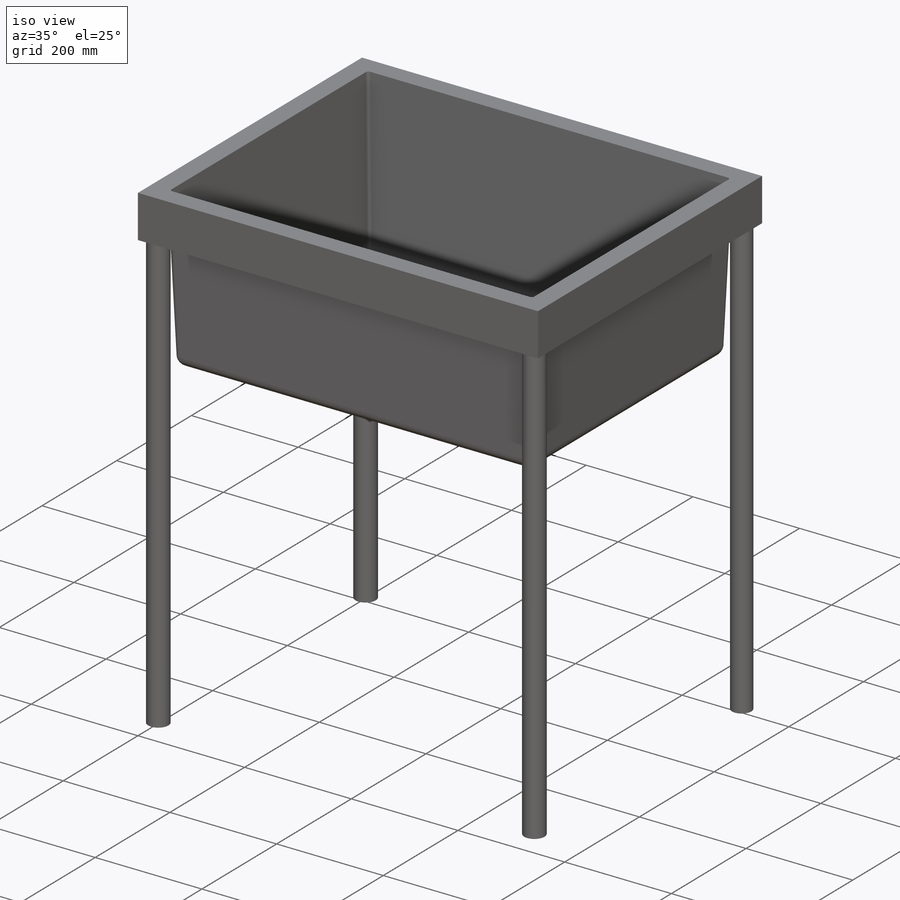
[diagram: iso view]
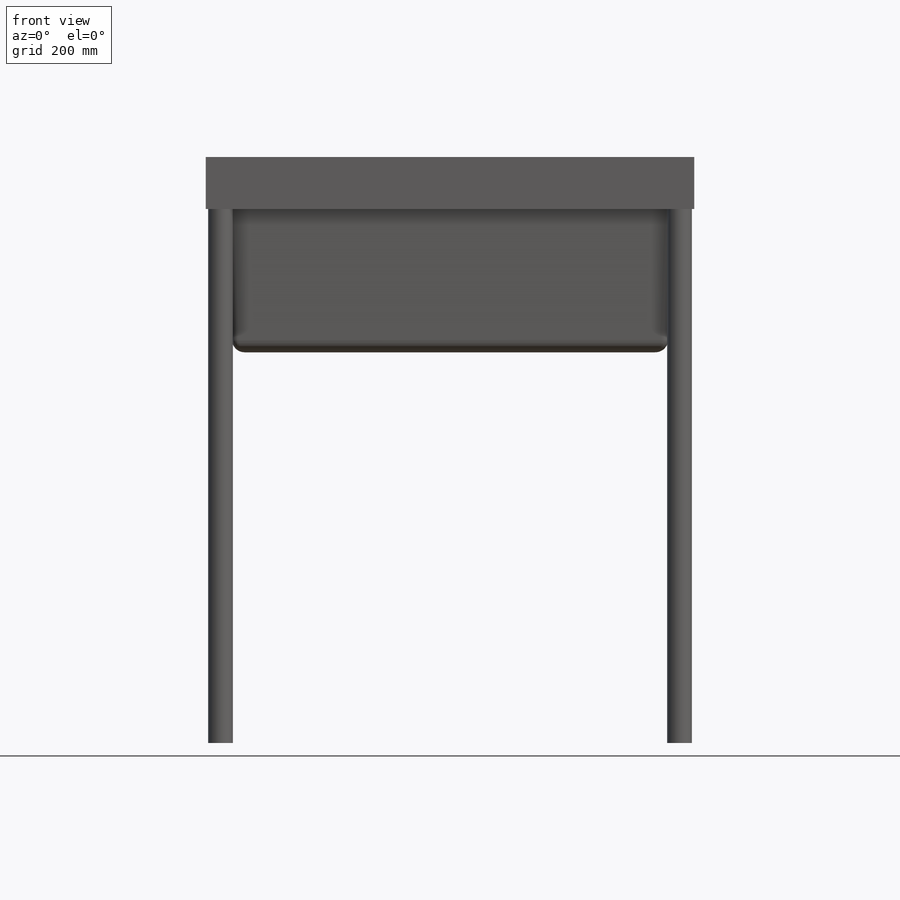
[diagram: front view]
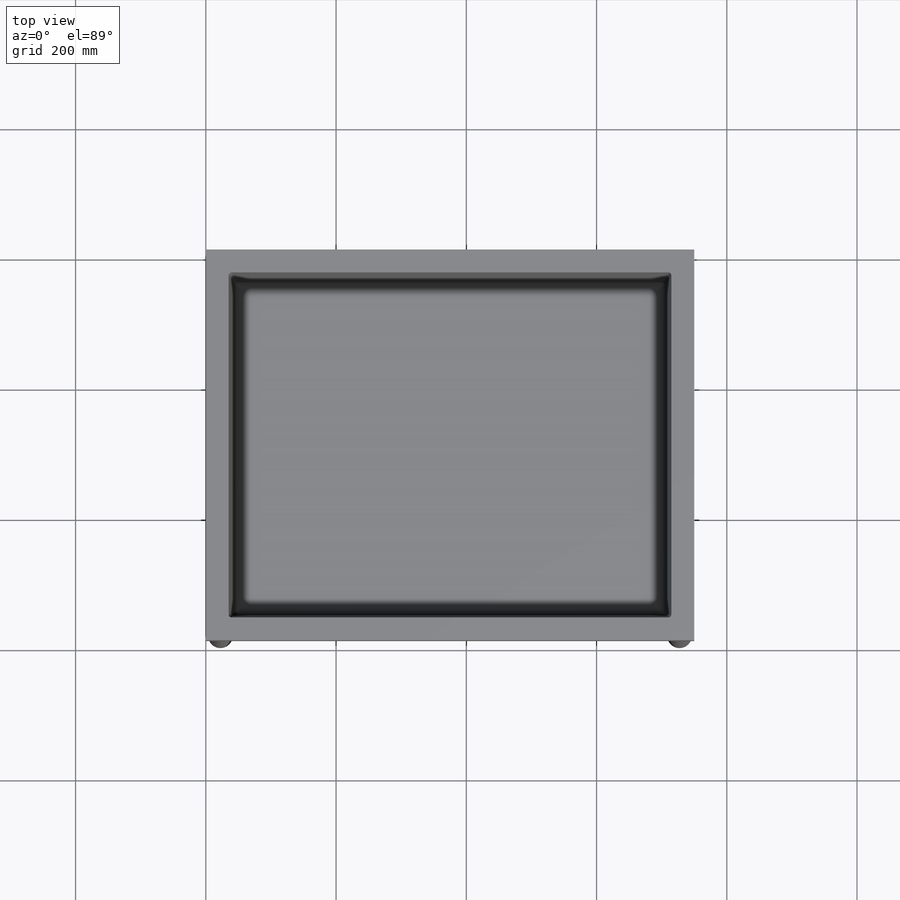
[diagram: top view]
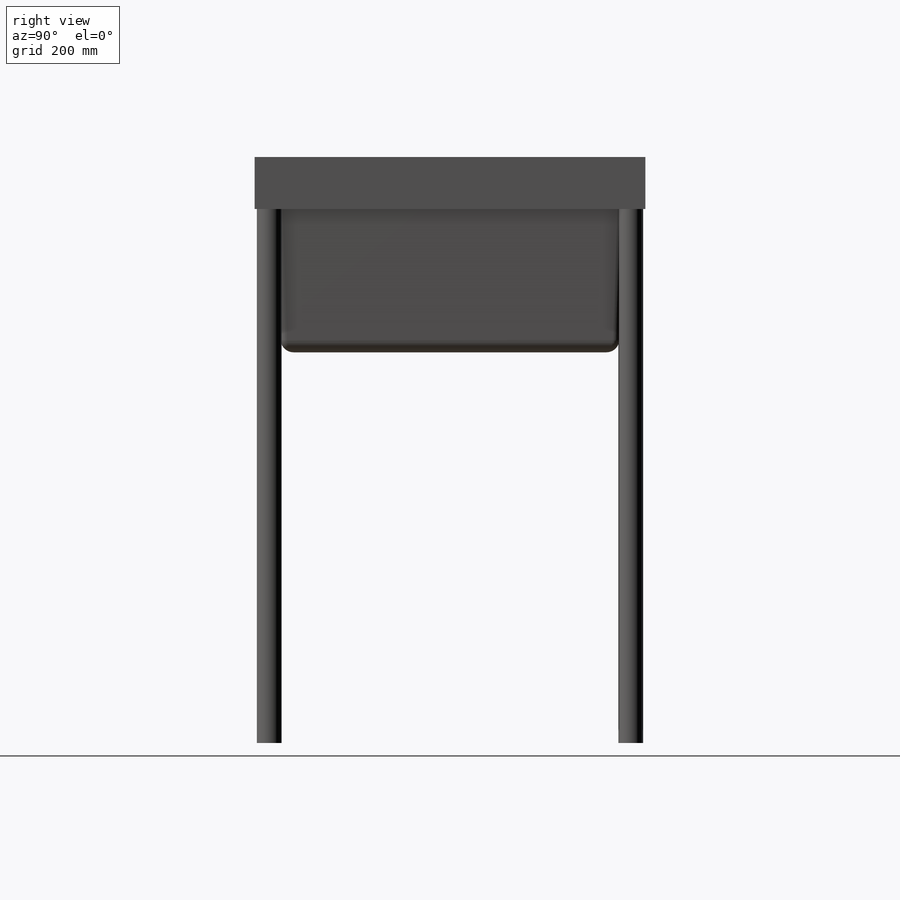
[diagram: right view]
SOLIDWORKS PART (.sldprt)
format: sldprt  version: not decoded by parser v0  size: 293,376 bytes
history: native  units: mm
features: sketch x5, extrude x3, fillet x3, material x1, cut_extrude x1, shell x1, plane x1 (+11 scaffold rows collapsed)
feature tree (26):
  scaffold x11  (default folders/planes/origin — collapsed)
  material  "Material <not specified>"
  sketch  "Sketch2"  dims[D1=750.0mm]
  extrude  "Boss-Extrude1"  Depth=80mm
  sketch  "Sketch3"  dims[D1=30.0mm]
  cut_extrude  "Cut-Extrude1"  Depth=100mm
  extrude  "Boss-Extrude2"  [1 undecoded]
  sketch  "Sketch3<2>"  dims[D1=300.0mm D3=2.0deg]
  fillet  "Fillet1"  Radius=20mm
  fillet  "Fillet2"  Radius=10mm
  fillet  "Fillet3"  Radius=2mm
  shell  "Shell2"  Thickness=5mm
  sketch  "Sketch2<3>"  dims[D1=80.0mm D5=35.0mm D6=1.0mm D7=5.0mm]
  plane  "Plane1"  Offset=0mm
  sketch  "Sketch4"  dims[D1=45.0mm]
  extrude  "Boss-Extrude4"  Depth=820mm
decode coverage: 12 of 13 modeling features carry decoded parameters
note: 1 parameter value undecoded
note: suppression state not decoded; provenance and decode notes live in map.json
